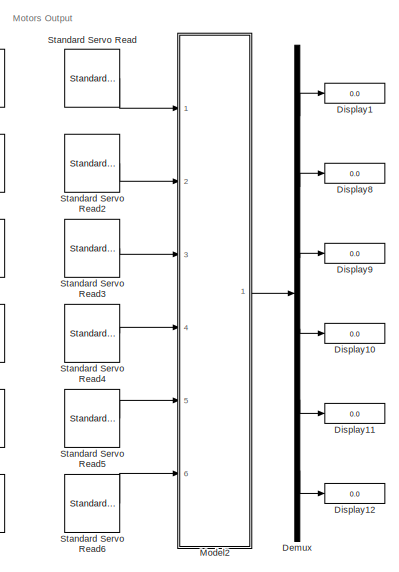
[diagram: root canvas - part 1/2, right side, full height]
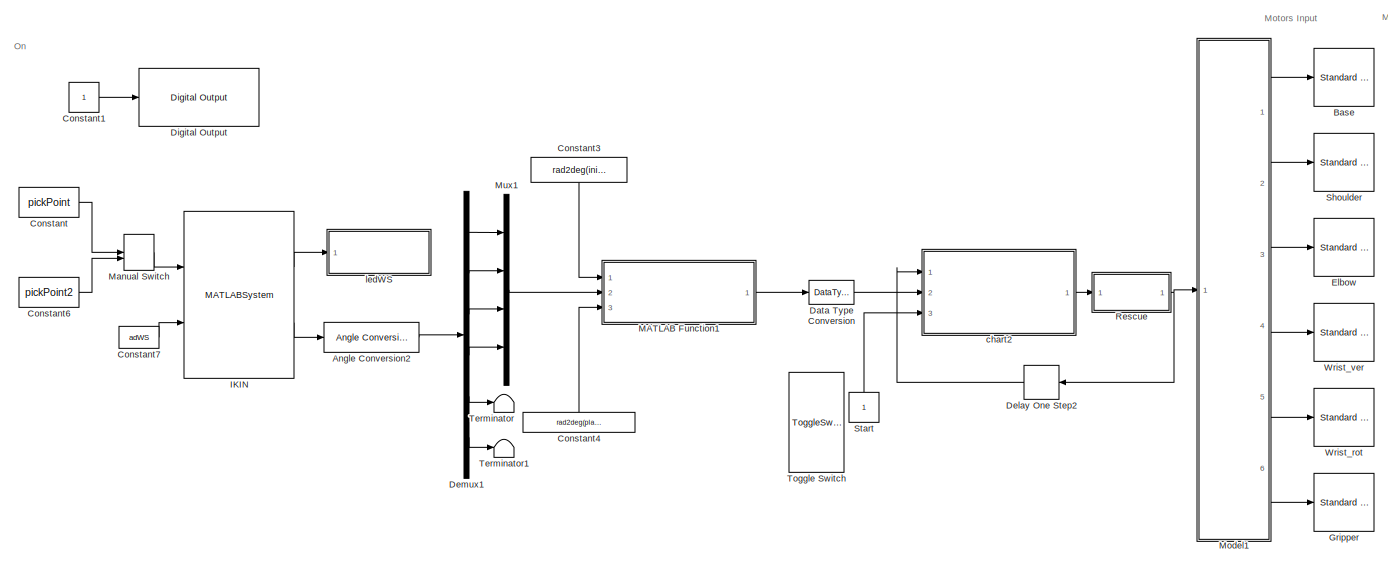
[diagram: root canvas - part 2/2, most of the canvas]
MODEL slx_efaa442456d4
KIND model
CONFIG AbsTol = auto
CONFIG EnableMultiTasking = on
CONFIG FixedStep = auto
CONFIG MaxStep = auto
CONFIG MinStep = auto
CONFIG RelTol = 1e-3
CONFIG SampleTimeConstraint = Unconstrained
CONFIG SolverName = FixedStepAuto
CONFIG StartTime = 0.0
CONFIG StopTime = inf
BLOCK [Reference] Angle Conversion2  REF=aerolibconvert2/Angle Conversion
  Ports = [1, 1]
  SourceBlock = aerolibconvert2/Angle Conversion
  SourceProductBaseCode = AE
  SourceType = Angle Conversion
BLOCK [Reference] Base  REF=arduinolib/Standard Servo Write
  Ports = [1]
  SourceBlock = arduinolib/Standard Servo Write
  SourceProductBaseCode = ARDUINO
  SourceType = Arduino Standard Servo Write
BLOCK [Constant] Constant
  Value = pickPoint
BLOCK [Constant] Constant1
BLOCK [Constant] Constant3
  NameLocation = left
  Value = rad2deg(initPoint)
BLOCK [Constant] Constant4
  NameLocation = right
  Value = rad2deg(placePoint)
BLOCK [Constant] Constant6
  Value = pickPoint2
BLOCK [Constant] Constant7
  Value = adWS
BLOCK [DataTypeConversion] Data Type Conversion
  OutDataTypeStr = int32
  RndMeth = Round
  SaturateOnIntegerOverflow = off
BLOCK [Delay] Delay One Step2
  DelayLength = 1
  InitialCondition = adHome6deg
  InputPortMap = u0
  NameLocation = top
  Ports = [1, 1]
BLOCK [Demux] Demux
  Outputs = 6
  Ports = [1, 6]
BLOCK [Demux] Demux1
  Outputs = 6
  Ports = [1, 6]
BLOCK [Reference] Digital Output  REF=arduinolib/Digital Output
  Ports = [1]
  SourceBlock = arduinolib/Digital Output
  SourceProductBaseCode = ARDUINO
  SourceType = Arduino Digital Output
BLOCK [Display] Display1
  Decimation = 1
  Ports = [1]
BLOCK [Display] Display10
  Decimation = 1
  Ports = [1]
BLOCK [Display] Display11
  Decimation = 1
  Ports = [1]
BLOCK [Display] Display12
  Decimation = 1
  Ports = [1]
BLOCK [Display] Display8
  Decimation = 1
  Ports = [1]
BLOCK [Display] Display9
  Decimation = 1
  Ports = [1]
BLOCK [Reference] Elbow  REF=arduinolib/Standard Servo Write
  Ports = [1]
  SourceBlock = arduinolib/Standard Servo Write
  SourceProductBaseCode = ARDUINO
  SourceType = Arduino Standard Servo Write
BLOCK [Reference] Gripper  REF=arduinolib/Standard Servo Write
  Ports = [1]
  SourceBlock = arduinolib/Standard Servo Write
  SourceProductBaseCode = ARDUINO
  SourceType = Arduino Standard Servo Write
BLOCK [MATLABSystem] IKIN
  MaskDisplay = disp('oIKINSolver');\nport_label('input',1,'adPoint');\nport_label('input',2,'adWS');\nport_label('output',1,'bFlag');\nport_label('output',2,'adJC');
  MaskType = oIKINSolver
  Ports = [2, 2]
  SimulateUsing = Code generation
  System = oIKINSolver
  adBaseMinMaxDeg = adMotorLimits(1,:)
  adElbowMinMaxDeg = adMotorLimits(3,:)
  adHomeDeg = adHome6deg
  adPitchMinMaxDeg = adMotorLimits(4,:)
  adRollMinMaxDeg = adMotorLimits(5,:)
  adShoulderMinMaxDeg = adMotorLimits(2,:)
  nArmLength = adLinkLenghts(2)
  nForearmLength = adLinkLenghts(3)
  nGroundLength = adLinkLenghts(1)
  nHandLength = adLinkLenghts(4)
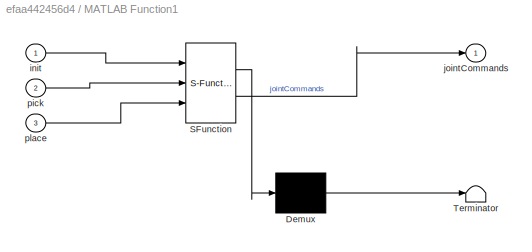
BLOCK [SubSystem] MATLAB Function1
  ErrorFcn = Stateflow.Translate.translate
  PermitHierarchicalResolution = ExplicitOnly
  Ports = [3, 1]
  RequestExecContextInheritance = off
  SFBlockType = MATLAB Function
  TreatAsAtomicUnit = on
BLOCK [Demux] MATLAB Function1/ Demux 
  Outputs = 1
  Ports = [1, 1]
BLOCK [S-Function] MATLAB Function1/ SFunction 
  EnableBusSupport = on
  FunctionName = sf_sfun
  PortCounts = [3 2]
  Ports = [3, 2]
  SFcnIsStateOwnerBlock = off
  SFunctionDeploymentMode = off
  Tag = Stateflow S-Function 5
BLOCK [Terminator] MATLAB Function1/ Terminator 
BLOCK [Inport] MATLAB Function1/init
BLOCK [Outport] MATLAB Function1/jointCommands
BLOCK [Inport] MATLAB Function1/pick
  Port = 2
BLOCK [Inport] MATLAB Function1/place
  Port = 3
BLOCK [ManualSwitch] Manual Switch
  CurrentSetting = 0
BLOCK [ModelReference] Model1
  ModelNameDialog = mWriteMask.slx
  ModelReferenceVersion = 1.6
  Ports = [1, 6]
BLOCK [ModelReference] Model2
  ModelNameDialog = mReadMask.slx
  ModelReferenceVersion = 1.7
  Ports = [6, 1]
BLOCK [Mux] Mux1
  DisplayOption = bar
  Ports = [4, 1]
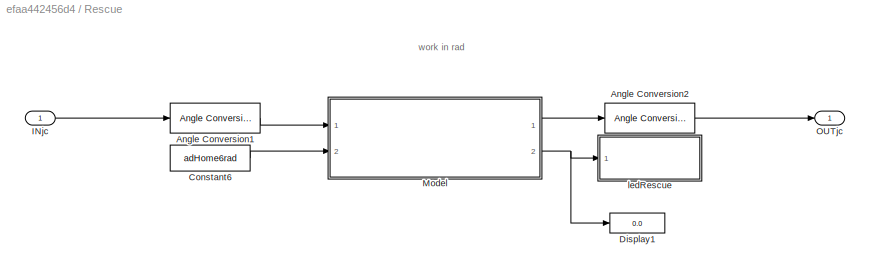
BLOCK [SubSystem] Rescue
  Ports = [1, 1]
  RequestExecContextInheritance = off
BLOCK [Reference] Rescue/Angle Conversion1  REF=aerolibconvert2/Angle Conversion
  Ports = [1, 1]
  SourceBlock = aerolibconvert2/Angle Conversion
  SourceProductBaseCode = AE
  SourceType = Angle Conversion
BLOCK [Reference] Rescue/Angle Conversion2  REF=aerolibconvert2/Angle Conversion
  Ports = [1, 1]
  SourceBlock = aerolibconvert2/Angle Conversion
  SourceProductBaseCode = AE
  SourceType = Angle Conversion
BLOCK [Constant] Rescue/Constant6
  Value = adHome6rad
BLOCK [Display] Rescue/Display1
  Decimation = 1
  Ports = [1]
BLOCK [Inport] Rescue/INjc
BLOCK [ModelReference] Rescue/Model
  ModelNameDialog = mRescue.slx
  ModelReferenceVersion = 1.31
  Ports = [2, 2]
BLOCK [Outport] Rescue/OUTjc
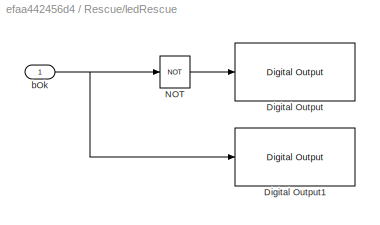
BLOCK [SubSystem] Rescue/ledRescue
  Ports = [1]
  RequestExecContextInheritance = off
  TreatAsAtomicUnit = on
BLOCK [Reference] Rescue/ledRescue/Digital Output  REF=arduinolib/Digital Output
  Ports = [1]
  SourceBlock = arduinolib/Digital Output
  SourceProductBaseCode = ARDUINO
  SourceType = Arduino Digital Output
BLOCK [Reference] Rescue/ledRescue/Digital Output1  REF=arduinolib/Digital Output
  Ports = [1]
  SourceBlock = arduinolib/Digital Output
  SourceProductBaseCode = ARDUINO
  SourceType = Arduino Digital Output
BLOCK [Logic] Rescue/ledRescue/NOT
  AllPortsSameDT = off
  IconShape = distinctive
  Operator = NOT
  OutDataTypeStr = boolean
  Ports = [1, 1]
BLOCK [Inport] Rescue/ledRescue/bOk
BLOCK [Reference] Shoulder  REF=arduinolib/Standard Servo Write
  Ports = [1]
  SourceBlock = arduinolib/Standard Servo Write
  SourceProductBaseCode = ARDUINO
  SourceType = Arduino Standard Servo Write
BLOCK [Reference] Standard Servo Read  REF=arduinolib/Standard Servo Read
  Ports = [0, 1]
  SourceBlock = arduinolib/Standard Servo Read
  SourceProductBaseCode = ARDUINO
  SourceType = Arduino Standard Servo Read
BLOCK [Reference] Standard Servo Read2  REF=arduinolib/Standard Servo Read
  Ports = [0, 1]
  SourceBlock = arduinolib/Standard Servo Read
  SourceProductBaseCode = ARDUINO
  SourceType = Arduino Standard Servo Read
BLOCK [Reference] Standard Servo Read3  REF=arduinolib/Standard Servo Read
  Ports = [0, 1]
  SourceBlock = arduinolib/Standard Servo Read
  SourceProductBaseCode = ARDUINO
  SourceType = Arduino Standard Servo Read
BLOCK [Reference] Standard Servo Read4  REF=arduinolib/Standard Servo Read
  Ports = [0, 1]
  SourceBlock = arduinolib/Standard Servo Read
  SourceProductBaseCode = ARDUINO
  SourceType = Arduino Standard Servo Read
BLOCK [Reference] Standard Servo Read5  REF=arduinolib/Standard Servo Read
  Ports = [0, 1]
  SourceBlock = arduinolib/Standard Servo Read
  SourceProductBaseCode = ARDUINO
  SourceType = Arduino Standard Servo Read
BLOCK [Reference] Standard Servo Read6  REF=arduinolib/Standard Servo Read
  Ports = [0, 1]
  SourceBlock = arduinolib/Standard Servo Read
  SourceProductBaseCode = ARDUINO
  SourceType = Arduino Standard Servo Read
BLOCK [Constant] Start
BLOCK [Terminator] Terminator
BLOCK [Terminator] Terminator1
BLOCK [ToggleSwitchBlock] Toggle Switch
  LabelPosition = Hide
BLOCK [Reference] Wrist_rot  REF=arduinolib/Standard Servo Write
  Ports = [1]
  SourceBlock = arduinolib/Standard Servo Write
  SourceProductBaseCode = ARDUINO
  SourceType = Arduino Standard Servo Write
BLOCK [Reference] Wrist_ver  REF=arduinolib/Standard Servo Write
  Ports = [1]
  SourceBlock = arduinolib/Standard Servo Write
  SourceProductBaseCode = ARDUINO
  SourceType = Arduino Standard Servo Write
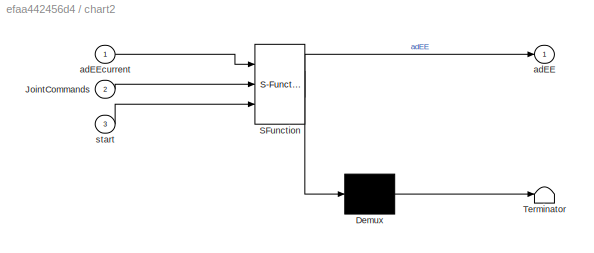
BLOCK [SubSystem] chart2
  ErrorFcn = Stateflow.Translate.translate
  PermitHierarchicalResolution = ExplicitOnly
  Ports = [3, 1]
  RequestExecContextInheritance = off
  SFBlockType = Chart
  SystemSampleTime = 0.02
  TreatAsAtomicUnit = on
BLOCK [Demux] chart2/ Demux 
  Outputs = 1
  Ports = [1, 1]
BLOCK [S-Function] chart2/ SFunction 
  EnableBusSupport = on
  FunctionName = sf_sfun
  PortCounts = [3 2]
  Ports = [3, 2]
  SFcnIsStateOwnerBlock = off
  SFunctionDeploymentMode = off
  Tag = Stateflow S-Function 2
BLOCK [Terminator] chart2/ Terminator 
BLOCK [Inport] chart2/JointCommands
  Port = 2
BLOCK [Outport] chart2/adEE
BLOCK [Inport] chart2/adEEcurrent
BLOCK [Inport] chart2/start
  Port = 3
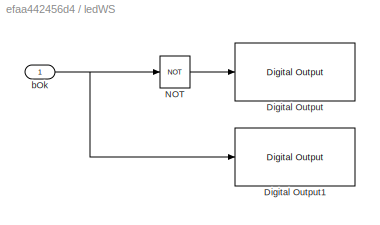
BLOCK [SubSystem] ledWS
  Ports = [1]
  RequestExecContextInheritance = off
  TreatAsAtomicUnit = on
BLOCK [Reference] ledWS/Digital Output  REF=arduinolib/Digital Output
  Ports = [1]
  SourceBlock = arduinolib/Digital Output
  SourceProductBaseCode = ARDUINO
  SourceType = Arduino Digital Output
BLOCK [Reference] ledWS/Digital Output1  REF=arduinolib/Digital Output
  Ports = [1]
  SourceBlock = arduinolib/Digital Output
  SourceProductBaseCode = ARDUINO
  SourceType = Arduino Digital Output
BLOCK [Logic] ledWS/NOT
  AllPortsSameDT = off
  IconShape = distinctive
  Operator = NOT
  OutDataTypeStr = boolean
  Ports = [1, 1]
BLOCK [Inport] ledWS/bOk
ANNOTATION (root): Motors Input
ANNOTATION (root): Motors Output
ANNOTATION (root): On
ANNOTATION Rescue: work in rad
LINE Angle Conversion2:1 -> Demux1:1
LINE Constant1:1 -> Digital Output:1
LINE Constant3:1 -> MATLAB Function1:1
LINE Constant4:1 -> MATLAB Function1:3
LINE Constant6:1 -> Manual Switch:2
LINE Constant7:1 -> IKIN:2
LINE Constant:1 -> Manual Switch:1
LINE Data Type Conversion:1 -> chart2:2
LINE Delay One Step2:1 -> chart2:1
LINE Demux1:1 -> Mux1:1
LINE Demux1:2 -> Mux1:2
LINE Demux1:3 -> Mux1:3
LINE Demux1:4 -> Mux1:4
LINE Demux1:5 -> Terminator:1
LINE Demux1:6 -> Terminator1:1
LINE Demux:1 -> Display1:1
LINE Demux:2 -> Display8:1
LINE Demux:3 -> Display9:1
LINE Demux:4 -> Display10:1
LINE Demux:5 -> Display11:1
LINE Demux:6 -> Display12:1
LINE IKIN:1 -> ledWS:1
LINE IKIN:2 -> Angle Conversion2:1
LINE MATLAB Function1:1 -> Data Type Conversion:1
LINE Manual Switch:1 -> IKIN:1
LINE Model1:1 -> Base:1
LINE Model1:2 -> Shoulder:1
LINE Model1:3 -> Elbow:1
LINE Model1:4 -> Wrist_ver:1
LINE Model1:5 -> Wrist_rot:1
LINE Model1:6 -> Gripper:1
LINE Model2:1 -> Demux:1
LINE Mux1:1 -> MATLAB Function1:2
LINE Rescue/Angle Conversion1:1 -> Rescue/Model:1
LINE Rescue/Angle Conversion2:1 -> Rescue/OUTjc:1
LINE Rescue/Constant6:1 -> Rescue/Model:2
LINE Rescue/INjc:1 -> Rescue/Angle Conversion1:1
LINE Rescue/Model:1 -> Rescue/Angle Conversion2:1
NET Rescue/Model:2 -> Rescue/Display1:1, Rescue/ledRescue:1
LINE Rescue/ledRescue/NOT:1 -> Rescue/ledRescue/Digital Output:1
NET Rescue/ledRescue/bOk:1 -> Rescue/ledRescue/Digital Output1:1, Rescue/ledRescue/NOT:1
NET Rescue:1 -> Delay One Step2:1, Model1:1
LINE Standard Servo Read2:1 -> Model2:2
LINE Standard Servo Read3:1 -> Model2:3
LINE Standard Servo Read4:1 -> Model2:4
LINE Standard Servo Read5:1 -> Model2:5
LINE Standard Servo Read6:1 -> Model2:6
LINE Standard Servo Read:1 -> Model2:1
LINE Start:1 -> chart2:3
LINE chart2:1 -> Rescue:1
LINE ledWS/NOT:1 -> ledWS/Digital Output:1
NET ledWS/bOk:1 -> ledWS/Digital Output1:1, ledWS/NOT:1
note: NET lines group one-source signal fan-out (src -> all destinations, sorted); 1:1 wires keep LINE
CHART chart2 states=10 transitions=11
  STATE_LABEL 'WayPoint1Reached\nentry:\n  counter = 0;\n  GripperDesired=50;\nduring:\n  adEE(6) = nextStep(adEEcurrent(6),GripperDesired);\n  counter = temporalCount(sec);'
  STATE_LABEL 'v = nextStep(current, desired)'
  STATE_LABEL 'SCRIPT:\nfunction v = nextStep(current, desired)\nif (current < desired)\n    current = current + 1;\nend\n\nif (current > desired)\n    current = current - 1;\nend\n\nv = current;\nend\n \n'  <repeated x6 — deduplicated; at blocks: chart2>
  STATE_LABEL 'v = nextStep(current, desired)'
  STATE_LABEL 'Init\nentry:\n  counter = 0;\n  grip = 0;\n  currentState=1;\n  stop=0;\n  GripperDesired=10;\nen:adEE = adEEcurrent;\ndu:counter=temporalCount(sec);\n'
  STATE_LABEL 'ToNextState\nentry:\n  if currentState<5\n      currentState=currentState+1;\n  else\n      stop=1;\n      adEE = adEEcurrent;\n  end\n  grip = 0;\n'
  STATE_LABEL 'Set\nentry:\n  stop=0;\n  counter=0;\n  currentState=1;\n  adEE(5) = 90;\nduring:\n  counter=temporalCount(sec);'
  STATE_LABEL 'WayPoint2Reached\nentry:\n  counter = 0;\n  GripperDesired=10;\nduring:\n  adEE(6) = nextStep(adEEcurrent(6),GripperDesired);\n  counter = temporalCount(sec);'
  STATE_LABEL 'v = nextStep(current, desired)'
  STATE_LABEL 'v = nextStep(current, desired)'
  STATE_LABEL "ToNextPoint\nentry:\n  adEEdesired=JointCommands(currentState,:)';\nduring:\n  adEE = [\n      nextStep(adEEcurrent(1), adEEdesired(1));\n      nextStep(adEEcurrent(2), adEEdesired(2));\n      nextStep(adEEcurrent(3), adEEdesired(3));\n      nextStep(adEEcurrent(4), adEEdesired(4));\n      adEE(5);\n      adEE(6)];\n"
  STATE_LABEL 'v = nextStep(current, desired)'
  STATE_LABEL 'v = nextStep(current, desired)'
  STATE_LABEL 'CheckState\nentry:\n  if currentState==2\n      grip=1;\n  elseif currentState==4\n      grip=2;\n  end\n'
CHART MATLAB Function1 states=1 transitions=1
  STATE_LABEL 'eML_blk_kernel()'
  STATE_LABEL "SCRIPT:\nfunction jointCommands = compose(init, pick, place)\n    jointCommands = [init'; pick'; init'; place'; init'];\nend"
CHART  states=0 transitions=0
CHART  states=0 transitions=0
